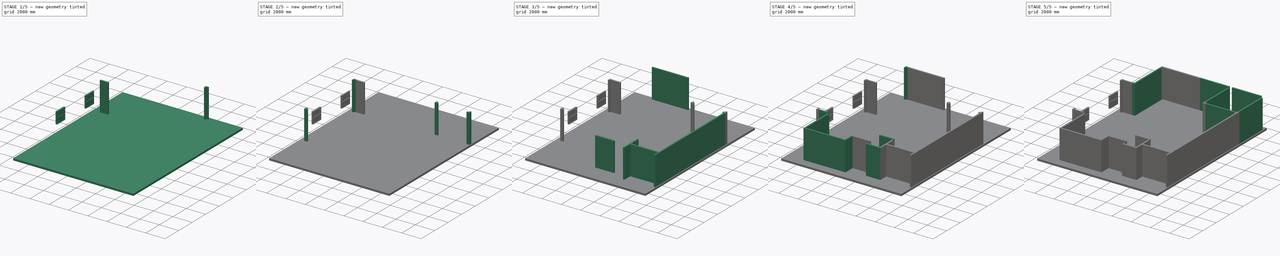
[diagram: build sequence overview — one tinted view per stage of 5, left to right]
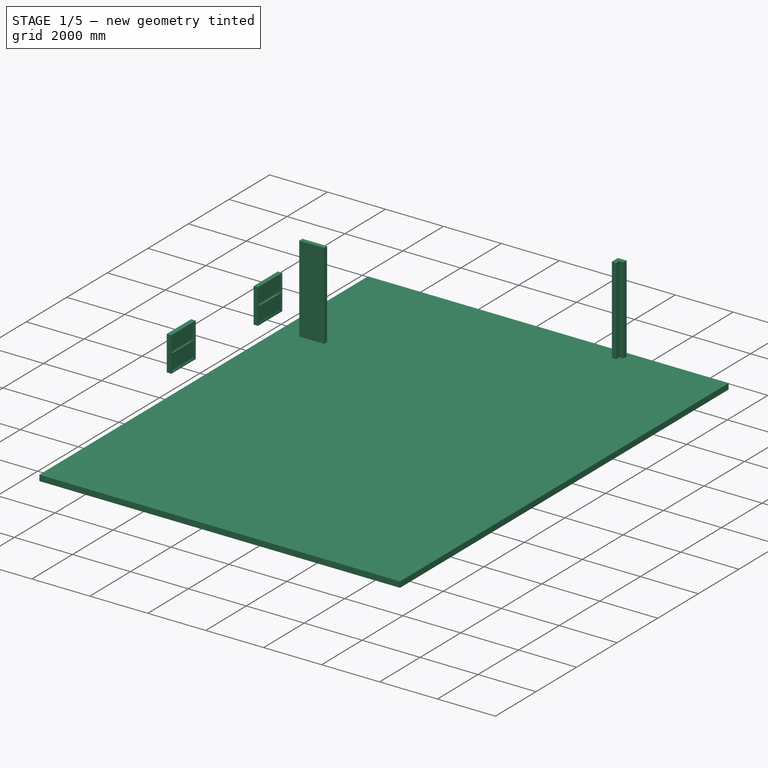
[diagram: stage 1 of 5 — iso view after this stage's code; geometry added in this stage tinted green]
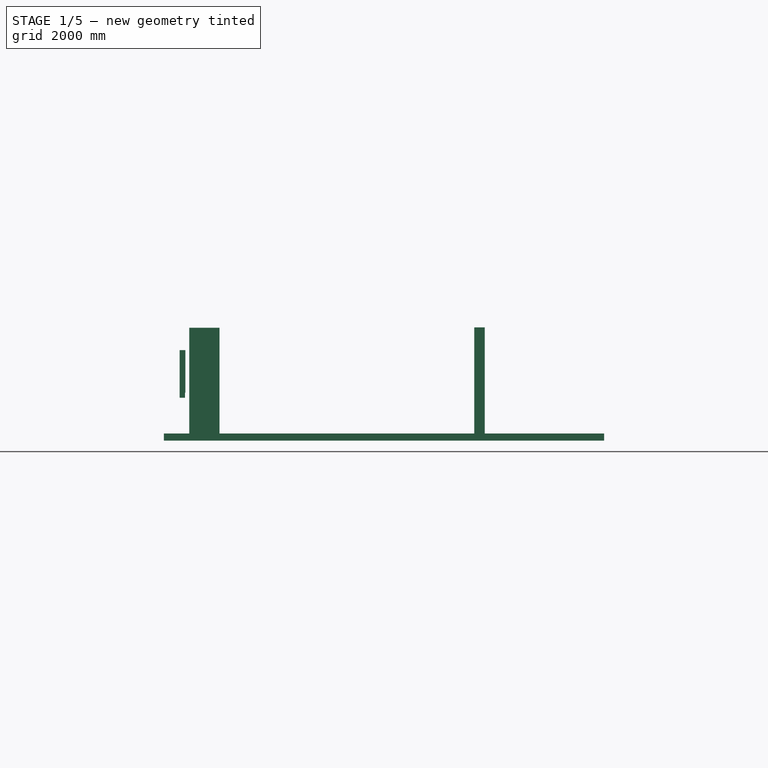
[diagram: stage 1 of 5 — front view after this stage's code; geometry added in this stage tinted green]
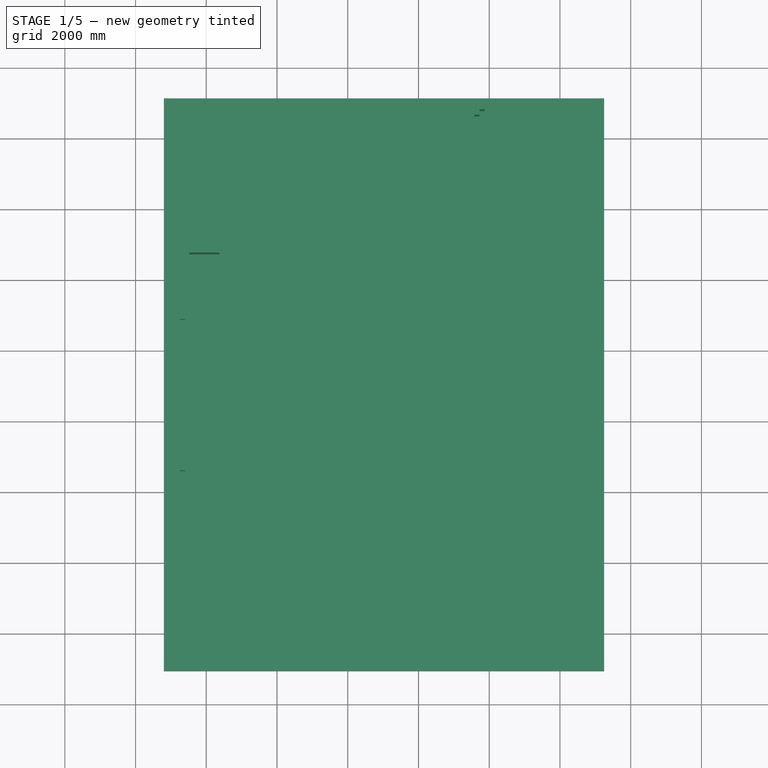
[diagram: stage 1 of 5 — top view after this stage's code; geometry added in this stage tinted green]
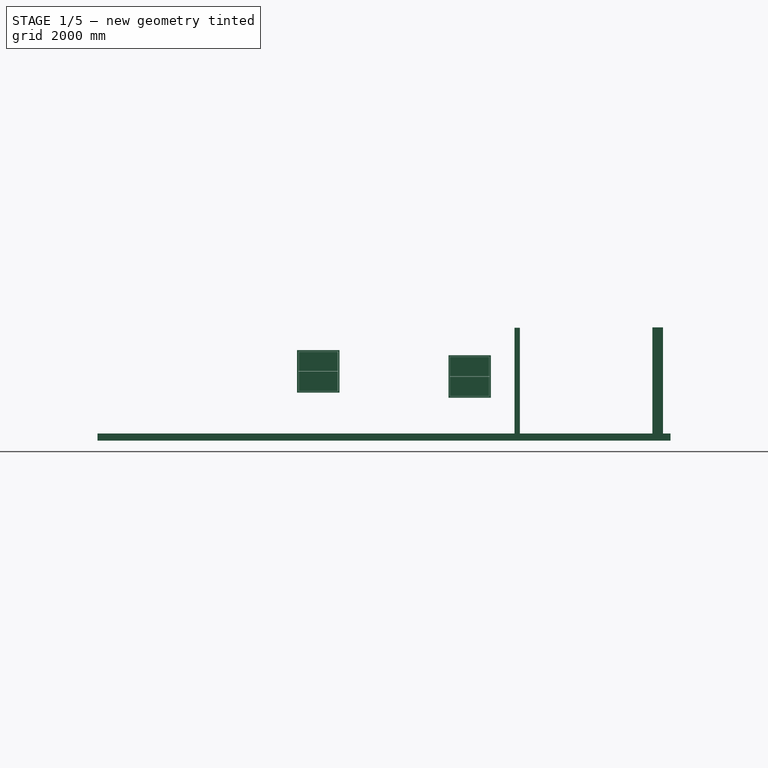
[diagram: stage 1 of 5 — right view after this stage's code; geometry added in this stage tinted green]
FCSTD DOCUMENT  (FreeCAD 0.18R16131 (Git))
Label: Model-AR2
License: All rights reserved
LicenseURL: http://en.wikipedia.org/wiki/All_rights_reserved
objects: Sketcher::SketchObject×28, Part::FeaturePython×26, Part::Mirroring×9, App::DocumentObjectGroup×6, Part::Part2DObjectPython×1, Part::Line×1, Part::Plane×1, Part::Feature×1
note: 67 computed .brp shape members not serialized (recipe doc carries the construction recipe); baked Part::Feature solids carry a one-line shape summary decoded from their .brp

FEATURE [Part::Part2DObjectPython] Wire001  # Draft 2D object (typed FeaturePython)
  ChamferSize = 0
  Closed = true
  End = (-6600,-4199.13,0)
  FilletRadius = 0
  Length = 1200.88
  MakeFace = true
  Points = (6) [(-6600,-4500,0),(-6300,-4500,0),(-6300,-4350,0),(-6450,-4350,0),(-6450,-4200,0),(-6600,-4199.13,0)]
  Start = (-6600,-4500,0)
  Subdivisions = 0
FEATURE [Part::Mirroring] mirror  label="Mirror of Wire"
  Base = (-6450,-2371.2,0)
  Normal = (0,-1,0)
  Placement = pos=(75,28.8001,0) rot=(0,0,1;0rad)
FEATURE [Part::FeaturePython] Wall001  label="L-300x300"  # Arch/BIM object (typed FeaturePython)
  Align = 2
  Base = -> mirror
  BlockHeight = 0
  BlockLength = 0
  CountBroken = 0
  CountEntire = 0
  Face = 0
  Height = 3000
  HorizontalArea = 67565.4
  IfcRole = 25
  Joint = 0
  Length = 0
  MakeBlocks = false
  MoveWithHost = false
  Normal = (0,0,0)
  OffsetFirst = 0
  OffsetSecond = 0
  PerimeterLength = 1200.88
  Placement = pos=(8100,7142.4,0) rot=(0,0,1;0rad)
  VerticalArea = 3.60263e+06
  Width = 150
FEATURE [Sketcher::SketchObject] WallTrace017
  Placement = pos=(-6525,-2371.2,0) rot=(0.707107,0.707107,0;3.14159rad)
  sketch-geometry (1):
    g0: LineSegment StartX=9300.87 StartY=1350 StartZ=0 EndX=9300 EndY=4950 EndZ=0
FEATURE [Sketcher::SketchObject] WallTrace019
  Placement = pos=(-6525,-2371.2,0) rot=(0.707107,0.707107,0;3.14159rad)
  sketch-geometry (1):
    g0: LineSegment StartX=4950 StartY=-150 StartZ=0 EndX=-1800 EndY=-150 EndZ=0
FEATURE [Part::FeaturePython] Wall031  label="CMU-W15"  # Arch/BIM object (typed FeaturePython)
  Align = 1
  Base = -> WallTrace019
  BlockHeight = 0
  BlockLength = 0
  CountBroken = 0
  CountEntire = 0
  Face = 0
  Height = 3000
  HorizontalArea = 1.3725e+06
  IfcRole = 156
  Joint = 0
  Length = 6750
  MakeBlocks = false
  MoveWithHost = false
  Normal = (0,0,-1)
  OffsetFirst = 0
  OffsetSecond = 0
  PerimeterLength = 13800
  Placement = pos=(42.8481,-0.000488281,2980.41) rot=(0,0,1;0rad)
  VerticalArea = 3.636e+07
  Width = 150
FEATURE [Part::Plane] Plane
  AttacherType = Attacher::AttachEngine3D
  Length = 12450
  Placement = pos=(-7200,7138.96,0) rot=(1,0,0;3.14159rad)
  Width = 16200
FEATURE [Part::FeaturePython] Structure  label="Floor Slab"  # Arch/BIM object (typed FeaturePython)
  Base = -> Plane
  FaceMaker = 2
  Height = 200
  HorizontalArea = 201690000
  IfcRole = 116
  Length = 0
  MoveWithHost = false
  Nodes = (4) [(-7200,9061.04,0),(-7200,-7138.96,0),(5250,9061.04,0),(5250,-7138.96,0)]
  NodesOffset = 0
  Normal = (0,0,0)
  PerimeterLength = 57300
  VerticalArea = 11460000
  Width = 150
FEATURE [App::DocumentObjectGroup] Group002  label="L-Stiffeners"
  Group = -> [Wall001,mirror003,mirror012,mirror011,mirror010,mirror007,mirror025,Clone,Wall046]
FEATURE [Part::Mirroring] mirror001  label="Mirror of L-Stiffeners"
  Base = (-4800.18,-391.768,0)
  Normal = (-1,0,0)
  Placement = pos=(75,28.8001,0) rot=(0,0,1;0rad)
  Source = -> Group002
FEATURE [App::DocumentObjectGroup] Group001  label="Structural Framing"
  Group = -> [Group002,mirror001]
FEATURE [Sketcher::SketchObject] WallTrace034
  Placement = pos=(5100,-2311.04,0) rot=(1,0,0;3.14159rad)
  sketch-geometry (1):
    g0: LineSegment StartX=-10725 StartY=-5188.96 StartZ=0 EndX=-11582.2 EndY=-5190.71 EndZ=0
FEATURE [Part::FeaturePython] Wall048  label="CMU-WN16"  # Arch/BIM object (typed FeaturePython)
  Align = 0
  Base = -> WallTrace034
  BlockHeight = 0
  BlockLength = 0
  CountBroken = 0
  CountEntire = 0
  Face = 0
  Height = 3000
  HorizontalArea = 128573
  IfcRole = 156
  Joint = 0
  Length = 857.154
  MakeBlocks = false
  MoveWithHost = false
  Normal = (0,0,-1)
  OffsetFirst = 0
  OffsetSecond = 0
  PerimeterLength = 2014.31
  Placement = pos=(0,0,2991.16) rot=(0,0,1;0rad)
  VerticalArea = 6.04292e+06
  Width = 150
FEATURE [App::DocumentObjectGroup] Group  label="GroundFloor External CMU"
  Group = -> [Wall030,Wall029,Wall027,WallTrace011,Wall026,Wall025,Wall018,Wire001,WallTrace017,Wall031,Wall,Wall032,Wall033,Wall034,WallTrace024,WallTrace025,Wall037,Wall039,Wall040,Wall042,WallTrace012,Wall041,Wall043,Wall044,Wall045,WallTrace033,Wall048,WallTrace034,WallTrace004,WallTrace003]
FEATURE [App::DocumentObjectGroup] Construction
FEATURE [App::DocumentObjectGroup] Group003  label="Structural Slabs"
  Group = -> [Structure]
FEATURE [Sketcher::SketchObject] Sketch
  Placement = pos=(-6782.15,2061.13,1012.24) rot=(0.57735,-0.57735,-0.57735;2.0944rad)
  sketch-geometry (24):
    g0: LineSegment StartX=0 StartY=0 StartZ=0 EndX=1200 EndY=0 EndZ=0
    g1: LineSegment StartX=1200 StartY=0 StartZ=0 EndX=1200 EndY=1200 EndZ=0
    g2: LineSegment StartX=1200 StartY=1200 StartZ=0 EndX=0 EndY=1200 EndZ=0
    g3: LineSegment StartX=0 StartY=1200 StartZ=0 EndX=0 EndY=0 EndZ=0
    g4: LineSegment StartX=40 StartY=40 StartZ=0 EndX=1160 EndY=40 EndZ=0
    g5: LineSegment StartX=1160 StartY=40 StartZ=0 EndX=1160 EndY=1160 EndZ=0
    g6: LineSegment StartX=1160 StartY=1160 StartZ=0 EndX=40 EndY=1160 EndZ=0
    g7: LineSegment StartX=40 StartY=1160 StartZ=0 EndX=40 EndY=40 EndZ=0
    g8: LineSegment StartX=44 StartY=44 StartZ=0 EndX=1156 EndY=44 EndZ=0
    g9: LineSegment StartX=1156 StartY=44 StartZ=0 EndX=1156 EndY=598 EndZ=0
    g10: LineSegment StartX=1156 StartY=598 StartZ=0 EndX=44 EndY=598 EndZ=0
    g11: LineSegment StartX=44 StartY=598 StartZ=0 EndX=44 EndY=44 EndZ=0
    g12: LineSegment StartX=74 StartY=74 StartZ=0 EndX=1126 EndY=74 EndZ=0
    g13: LineSegment StartX=1126 StartY=74 StartZ=0 EndX=1126 EndY=568 EndZ=0
    g14: LineSegment StartX=1126 StartY=568 StartZ=0 EndX=74 EndY=568 EndZ=0
    g15: LineSegment StartX=74 StartY=568 StartZ=0 EndX=74 EndY=74 EndZ=0
    g16: LineSegment StartX=44 StartY=602 StartZ=0 EndX=1156 EndY=602 EndZ=0
    g17: LineSegment StartX=1156 StartY=602 StartZ=0 EndX=1156 EndY=1156 EndZ=0
    g18: LineSegment StartX=1156 StartY=1156 StartZ=0 EndX=44 EndY=1156 EndZ=0
    g19: LineSegment StartX=44 StartY=1156 StartZ=0 EndX=44 EndY=602 EndZ=0
    g20: LineSegment StartX=74 StartY=632 StartZ=0 EndX=1126 EndY=632 EndZ=0
    g21: LineSegment StartX=1126 StartY=632 StartZ=0 EndX=1126 EndY=1126 EndZ=0
    g22: LineSegment StartX=1126 StartY=1126 StartZ=0 EndX=74 EndY=1126 EndZ=0
    g23: LineSegment StartX=74 StartY=1126 StartZ=0 EndX=74 EndY=632 EndZ=0
  constraints (71):
    c: Coincident(g0,g1)
    c: Coincident(g1,g2)
    c: Coincident(g2,g3)
    c: Coincident(g3,g0)
    c: Horizontal(g0)
    c: Horizontal(g2)
    c: Vertical(g1)
    c: Vertical(g3)
    c: Coincident(g4,g5)
    c: Coincident(g5,g6)
    c: Coincident(g6,g7)
    c: Coincident(g7,g4)
    c: Horizontal(g4)
    c: Horizontal(g6)
    c: Vertical(g5)
    c: Vertical(g7)
    c: DistanceY(g1) = 1200  'Height'
    c: DistanceX(g0) = 1200  'Width'
    c: DistanceY(g6,g2) = 40  'Frame1'
    c: DistanceX(g2,g6) = 40  'Frame2'
    c: DistanceX(g4,g0) = 40  'Frame3'
    c: DistanceY(g0,g4) = 40  'Frame4'
    c: Coincident(g0,g-1)
    c: Coincident(g8,g9)
    c: Coincident(g9,g10)
    c: Coincident(g10,g11)
    c: Coincident(g11,g8)
    c: Horizontal(g8)
    c: Horizontal(g10)
    c: Vertical(g9)
    c: Vertical(g11)
    c: Coincident(g12,g13)
    c: Coincident(g13,g14)
    c: Coincident(g14,g15)
    c: Coincident(g15,g12)
    c: Horizontal(g12)
    c: Horizontal(g14)
    c: Vertical(g13)
    c: Vertical(g15)
    c: Coincident(g16,g17)
    c: Coincident(g17,g18)
    c: Coincident(g18,g19)
    c: Coincident(g19,g16)
    c: Horizontal(g16)
    c: Horizontal(g18)
    c: Vertical(g17)
    c: Vertical(g19)
    c: Coincident(g20,g21)
    c: Coincident(g21,g22)
    c: Coincident(g22,g23)
    c: Coincident(g23,g20)
    c: Horizontal(g20)
    c: Horizontal(g22)
    c: Vertical(g21)
    c: Vertical(g23)
    c: DistanceY(g8,g12) = 30
    c: DistanceX(g8,g12) = 30
    c: DistanceX(g21,g17) = 30
    c: DistanceY(g21,g17) = 30
    c: DistanceY(g16,g20) = 30
    c: DistanceY(g10,g14) = -30
    c: Equal(g23,g15)
    c: DistanceX(g12,g20) = 0
    c: DistanceX(g13,g20) = 0
    c: DistanceX(g4,g8) = 4
    c: DistanceY(g4,g8) = 4
    c: DistanceX(g6,g18) = -4
    c: DistanceY(g6,g18) = -4
    c: DistanceY(g10,g16) = 4
    c: PointOnObject(g9,g17)
    c: PointOnObject(g16,g11)
FEATURE [Part::FeaturePython] Window  # Arch/BIM object (typed FeaturePython)
  Area = 1440000
  Base = -> Sketch
  Frame = 40
  Height = 1200
  HoleDepth = 0
  HoleWire = 0
  HorizontalArea = 0
  Hosts = -> [Wall031]
  IfcRole = 160
  LouvreSpacing = 0
  LouvreWidth = 0
  MoveWithHost = true
  Normal = (1,0,0)
  Offset = 30
  Opening = 0
  PerimeterLength = 0
  Preset = 4
  SymbolElevation = false
  SymbolPlan = false
  VerticalArea = 0
  Width = 1200
  WindowParts = OuterFrame | Frame | Wire0,Wire1 | 110.0+V | 0.00+V | LowerFrame | Frame | Wire2,Wire3 | 40.0 | 110.0+V | LowerGlass | Glass panel | Wire3 | 4.0 | 130.0+V | UpperFrame | Frame | Wire4,Wire5 | 40.0 | 70.0+V | UpperGlass | Glass panel | Wire5 | 4.0 | 90.0+V
FEATURE [Sketcher::SketchObject] Sketch001
  Placement = pos=(-6782.15,-2219.61,1157.13) rot=(0.57735,-0.57735,-0.57735;2.0944rad)
  sketch-geometry (24):
    g0: LineSegment StartX=0 StartY=0 StartZ=0 EndX=1200 EndY=0 EndZ=0
    g1: LineSegment StartX=1200 StartY=0 StartZ=0 EndX=1200 EndY=1200 EndZ=0
    g2: LineSegment StartX=1200 StartY=1200 StartZ=0 EndX=0 EndY=1200 EndZ=0
    g3: LineSegment StartX=0 StartY=1200 StartZ=0 EndX=0 EndY=0 EndZ=0
    g4: LineSegment StartX=40 StartY=40 StartZ=0 EndX=1160 EndY=40 EndZ=0
    g5: LineSegment StartX=1160 StartY=40 StartZ=0 EndX=1160 EndY=1160 EndZ=0
    g6: LineSegment StartX=1160 StartY=1160 StartZ=0 EndX=40 EndY=1160 EndZ=0
    g7: LineSegment StartX=40 StartY=1160 StartZ=0 EndX=40 EndY=40 EndZ=0
    g8: LineSegment StartX=44 StartY=44 StartZ=0 EndX=1156 EndY=44 EndZ=0
    g9: LineSegment StartX=1156 StartY=44 StartZ=0 EndX=1156 EndY=598 EndZ=0
    g10: LineSegment StartX=1156 StartY=598 StartZ=0 EndX=44 EndY=598 EndZ=0
    g11: LineSegment StartX=44 StartY=598 StartZ=0 EndX=44 EndY=44 EndZ=0
    g12: LineSegment StartX=74 StartY=74 StartZ=0 EndX=1126 EndY=74 EndZ=0
    g13: LineSegment StartX=1126 StartY=74 StartZ=0 EndX=1126 EndY=568 EndZ=0
    g14: LineSegment StartX=1126 StartY=568 StartZ=0 EndX=74 EndY=568 EndZ=0
    g15: LineSegment StartX=74 StartY=568 StartZ=0 EndX=74 EndY=74 EndZ=0
    g16: LineSegment StartX=44 StartY=602 StartZ=0 EndX=1156 EndY=602 EndZ=0
    g17: LineSegment StartX=1156 StartY=602 StartZ=0 EndX=1156 EndY=1156 EndZ=0
    g18: LineSegment StartX=1156 StartY=1156 StartZ=0 EndX=44 EndY=1156 EndZ=0
    g19: LineSegment StartX=44 StartY=1156 StartZ=0 EndX=44 EndY=602 EndZ=0
    g20: LineSegment StartX=74 StartY=632 StartZ=0 EndX=1126 EndY=632 EndZ=0
    g21: LineSegment StartX=1126 StartY=632 StartZ=0 EndX=1126 EndY=1126 EndZ=0
    g22: LineSegment StartX=1126 StartY=1126 StartZ=0 EndX=74 EndY=1126 EndZ=0
    g23: LineSegment StartX=74 StartY=1126 StartZ=0 EndX=74 EndY=632 EndZ=0
  constraints (71):
    c: Coincident(g0,g1)
    c: Coincident(g1,g2)
    c: Coincident(g2,g3)
    c: Coincident(g3,g0)
    c: Horizontal(g0)
    c: Horizontal(g2)
    c: Vertical(g1)
    c: Vertical(g3)
    c: Coincident(g4,g5)
    c: Coincident(g5,g6)
    c: Coincident(g6,g7)
    c: Coincident(g7,g4)
    c: Horizontal(g4)
    c: Horizontal(g6)
    c: Vertical(g5)
    c: Vertical(g7)
    c: DistanceY(g1) = 1200  'Height'
    c: DistanceX(g0) = 1200  'Width'
    c: DistanceY(g6,g2) = 40  'Frame1'
    c: DistanceX(g2,g6) = 40  'Frame2'
    c: DistanceX(g4,g0) = 40  'Frame3'
    c: DistanceY(g0,g4) = 40  'Frame4'
    c: Coincident(g0,g-1)
    c: Coincident(g8,g9)
    c: Coincident(g9,g10)
    c: Coincident(g10,g11)
    c: Coincident(g11,g8)
    c: Horizontal(g8)
    c: Horizontal(g10)
    c: Vertical(g9)
    c: Vertical(g11)
    c: Coincident(g12,g13)
    c: Coincident(g13,g14)
    c: Coincident(g14,g15)
    c: Coincident(g15,g12)
    c: Horizontal(g12)
    c: Horizontal(g14)
    c: Vertical(g13)
    c: Vertical(g15)
    c: Coincident(g16,g17)
    c: Coincident(g17,g18)
    c: Coincident(g18,g19)
    c: Coincident(g19,g16)
    c: Horizontal(g16)
    c: Horizontal(g18)
    c: Vertical(g17)
    c: Vertical(g19)
    c: Coincident(g20,g21)
    c: Coincident(g21,g22)
    c: Coincident(g22,g23)
    c: Coincident(g23,g20)
    c: Horizontal(g20)
    c: Horizontal(g22)
    c: Vertical(g21)
    c: Vertical(g23)
    c: DistanceY(g8,g12) = 30
    c: DistanceX(g8,g12) = 30
    c: DistanceX(g21,g17) = 30
    c: DistanceY(g21,g17) = 30
    c: DistanceY(g16,g20) = 30
    c: DistanceY(g10,g14) = -30
    c: Equal(g23,g15)
    c: DistanceX(g12,g20) = 0
    c: DistanceX(g13,g20) = 0
    c: DistanceX(g4,g8) = 4
    c: DistanceY(g4,g8) = 4
    c: DistanceX(g6,g18) = -4
    c: DistanceY(g6,g18) = -4
    c: DistanceY(g10,g16) = 4
    c: PointOnObject(g9,g17)
    c: PointOnObject(g16,g11)
FEATURE [Part::FeaturePython] Window002  label="Window"  # Arch/BIM object (typed FeaturePython)
  Area = 1440000
  Base = -> Sketch001
  Frame = 40
  Height = 1200
  HoleDepth = 0
  HoleWire = 0
  HorizontalArea = 0
  Hosts = -> [Wall031]
  IfcRole = 160
  LouvreSpacing = 0
  LouvreWidth = 0
  MoveWithHost = true
  Normal = (1,0,0)
  Offset = 30
  Opening = 0
  PerimeterLength = 0
  Preset = 4
  SymbolElevation = false
  SymbolPlan = false
  VerticalArea = 0
  Width = 1200
  WindowParts = OuterFrame | Frame | Wire0,Wire1 | 120.0+V | 0.00+V | LowerFrame | Frame | Wire2,Wire3 | 30.0 | 100.0+V | LowerGlass | Glass panel | Wire3 | 3.0 | 115.0+V | UpperFrame | Frame | Wire4,Wire5 | 30.0 | 70.0+V | UpperGlass | Glass panel | Wire5 | 3.0 | 85.0+V
FEATURE [App::DocumentObjectGroup] Group004  label="Windows"
  Group = -> [Window002,Window]
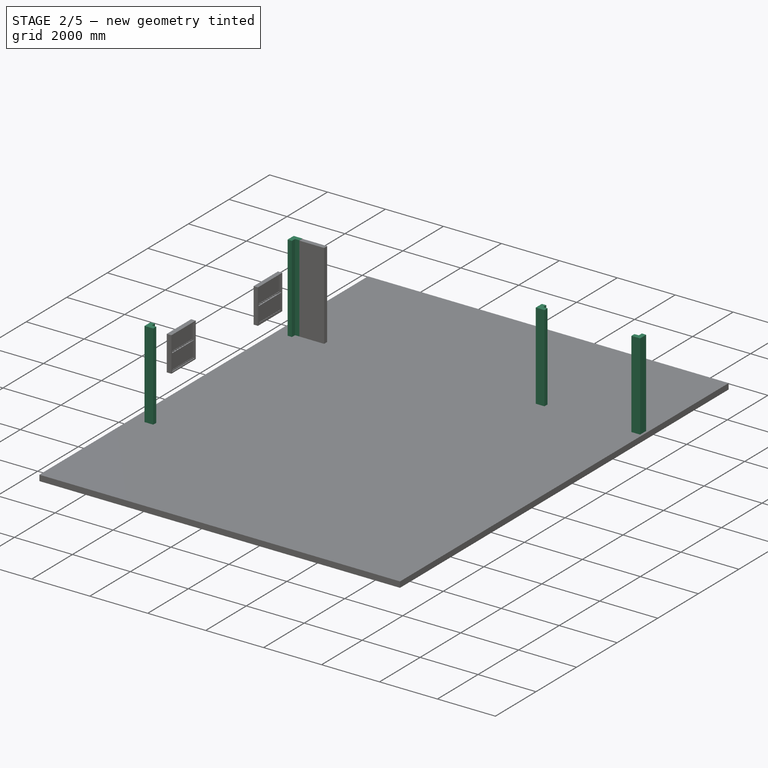
[diagram: stage 2 of 5 — iso view after this stage's code; geometry added in this stage tinted green]
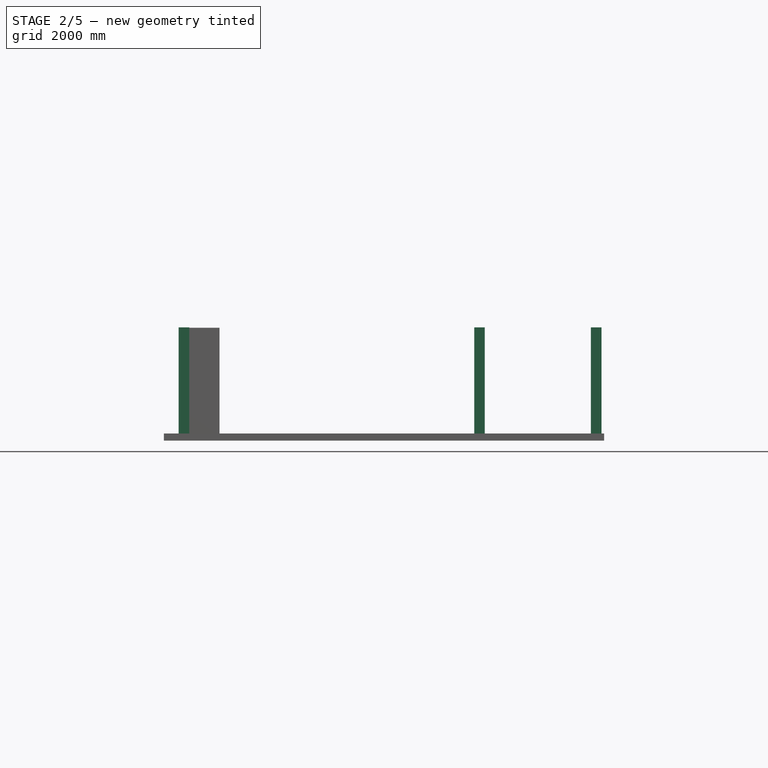
[diagram: stage 2 of 5 — front view after this stage's code; geometry added in this stage tinted green]
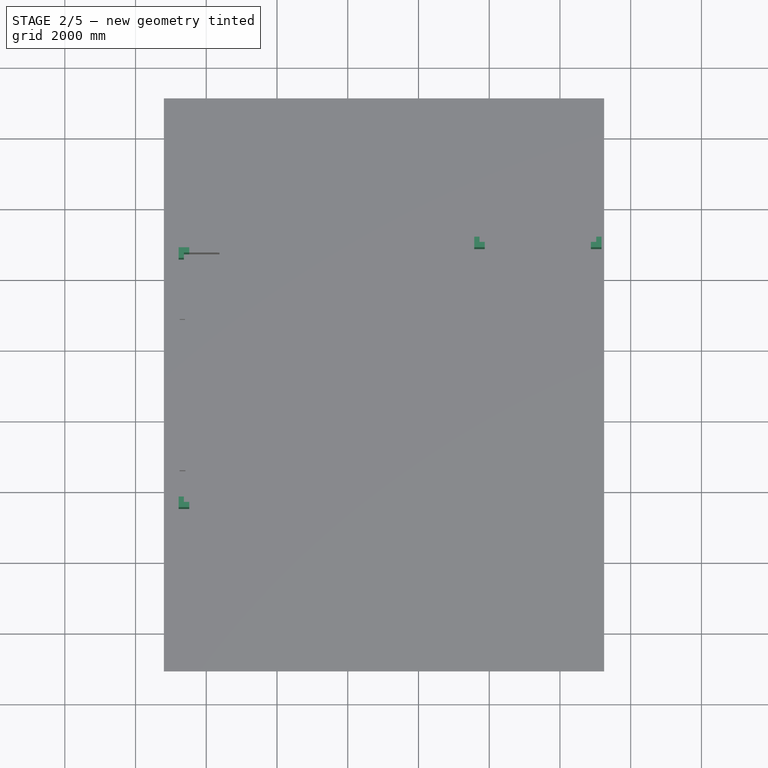
[diagram: stage 2 of 5 — top view after this stage's code; geometry added in this stage tinted green]
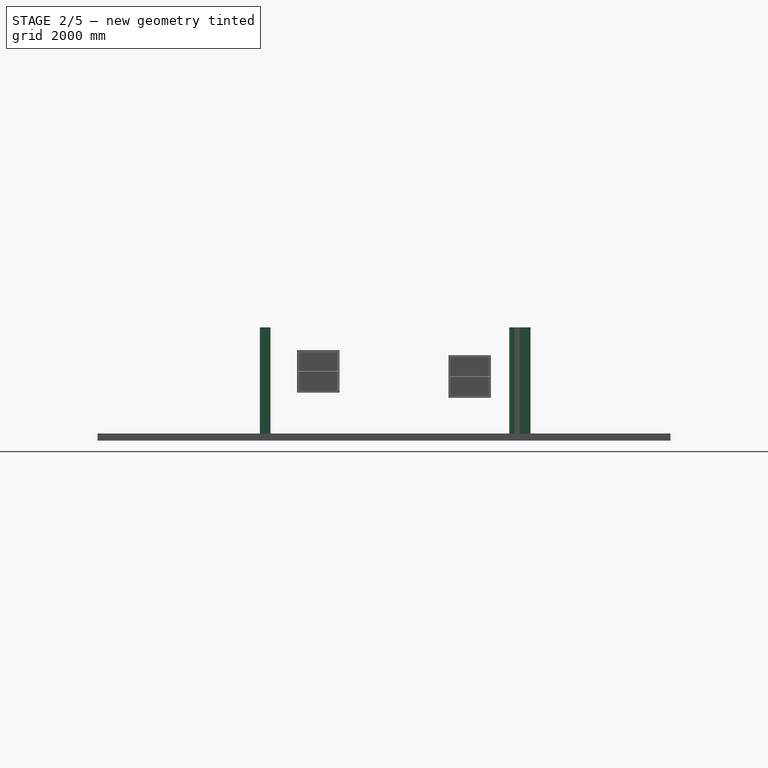
[diagram: stage 2 of 5 — right view after this stage's code; geometry added in this stage tinted green]
FEATURE [Sketcher::SketchObject] WallTrace002
  sketch-geometry (1):
    g0: LineSegment StartX=-10800 StartY=-5400 StartZ=0 EndX=-7800 EndY=-5400 EndZ=0
FEATURE [Part::Mirroring] mirror002  label="Mirror of L-300x300"
  Base = (-4800.18,-391.768,0)
  Normal = (-1,0,0)
  Placement = pos=(16350.4,-9.76563e-05,0) rot=(0,0,1;0rad)
  Source = -> Wall001
FEATURE [Sketcher::SketchObject] WallTrace003
  sketch-geometry (1):
    g0: LineSegment StartX=-3000.36 StartY=-3000.48 StartZ=0 EndX=600 EndY=-3000 EndZ=0
FEATURE [Sketcher::SketchObject] WallTrace004
  sketch-geometry (1):
    g0: LineSegment StartX=-3000.36 StartY=-3001.48 StartZ=0 EndX=1200 EndY=-3000 EndZ=0
FEATURE [Part::FeaturePython] Clone  label="Cloned Mirror of L-300x300"  # Draft clone (typed FeaturePython)
  AttacherType = Attacher::AttachEngine3D
  Fuse = false
  Objects = -> [mirror002]
  Placement = pos=(5852.46,-11250,0) rot=(0,0,1;0rad)
  Scale = (1,1,1)
FEATURE [Part::Mirroring] mirror009  label="Mirror of Cloned Mirror of L-300x300"
  Base = (-6032.15,-4321.2,-19.592)
  Normal = (1,0,0)
  Placement = pos=(-40.7451,7200.87,0) rot=(0,0,1;0rad)
  Source = -> Clone
FEATURE [Part::Mirroring] mirror010  label="Mirror of Mirror of Cloned Mirror of L-300x300"
  Base = (-6441.41,-4396.2,-19.592)
  Normal = (1.1e-15,-1,0)
  Placement = pos=(-1.728e-11,7200,0) rot=(0,0,1;0rad)
  Source = -> mirror009
FEATURE [Sketcher::SketchObject] WallTrace033
  Placement = pos=(-6707.15,-796.2,-19.592) rot=(0.707107,-0.707107,0;3.14159rad)
  sketch-geometry (1):
    g0: LineSegment StartX=-3674.13 StartY=-1082.15 StartZ=0 EndX=-3675.87 EndY=-225 EndZ=0
FEATURE [Part::Mirroring] mirror011  label="Mirror of L-300x300"
  Base = (1575,4903.8,-19.592)
  Normal = (0,-1,0)
  Source = -> Wall001
FEATURE [Part::Mirroring] mirror012  label="Mirror of Mirror of L-300x300"
  Base = (1575,4903.8,-19.592)
  Normal = (0,-1,0)
  Source = -> mirror002
FEATURE [Part::Feature] mirror025  label="Mirror of Cloned Mirror of L-300x300"
  Placement = pos=(-40.7451,7200,-19.592) rot=(0,0,1;0rad)
  shape: bbox 300 x 300.9 x 3000 mm, 8 faces (baked)
FEATURE [Part::FeaturePython] Wall046  label="Wall"  # Arch/BIM object (typed FeaturePython)
  Align = 2
  Base = -> mirror009
  BlockHeight = 0
  BlockLength = 0
  CountBroken = 0
  CountEntire = 0
  Face = 0
  Height = 3000
  HorizontalArea = 67565.4
  IfcRole = 156
  Joint = 0
  Length = 0
  MakeBlocks = false
  MoveWithHost = false
  Normal = (0,0,0)
  OffsetFirst = 0
  OffsetSecond = 0
  PerimeterLength = 1200.88
  VerticalArea = 3.60263e+06
  Width = 150
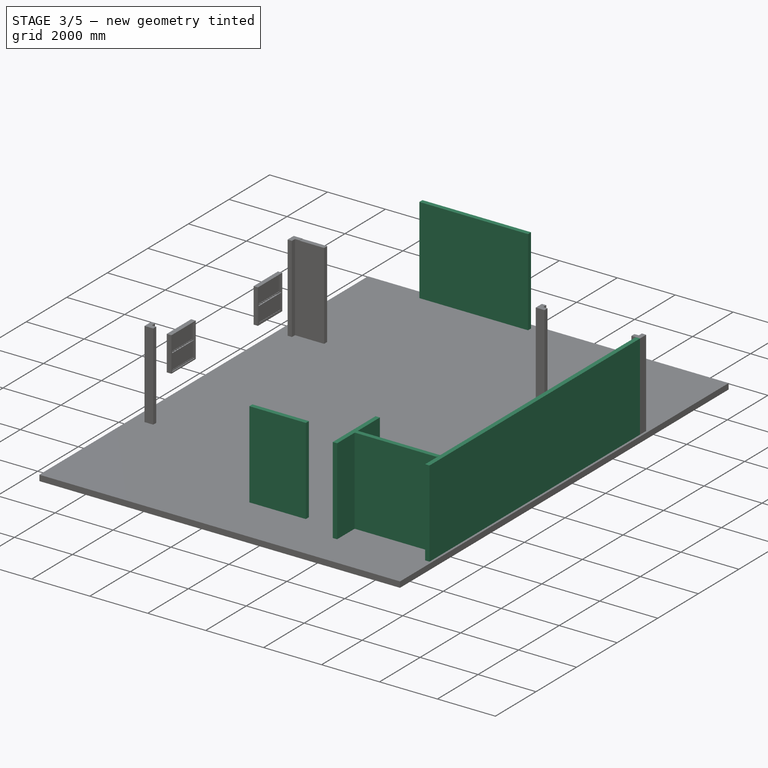
[diagram: stage 3 of 5 — iso view after this stage's code; geometry added in this stage tinted green]
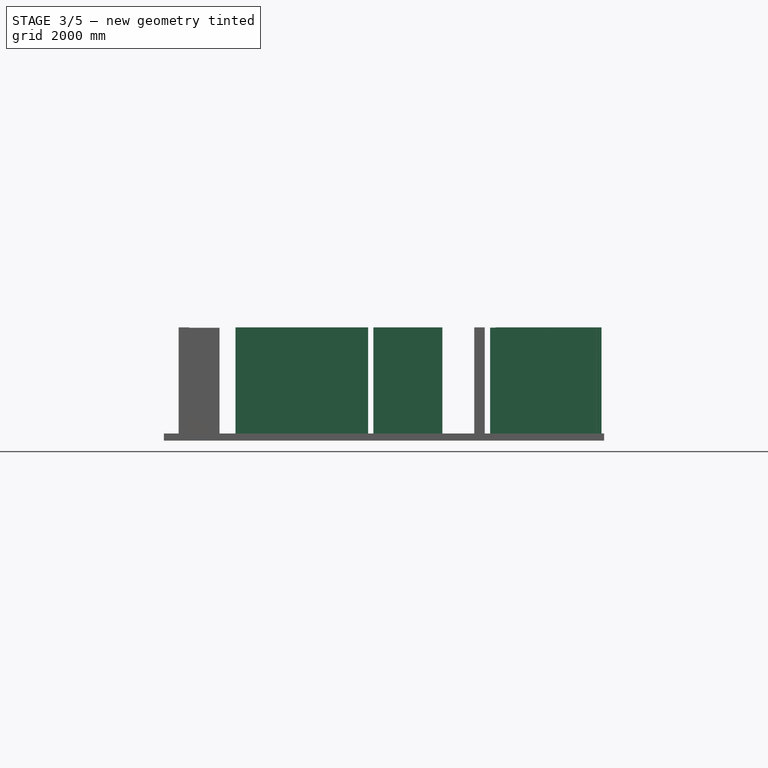
[diagram: stage 3 of 5 — front view after this stage's code; geometry added in this stage tinted green]
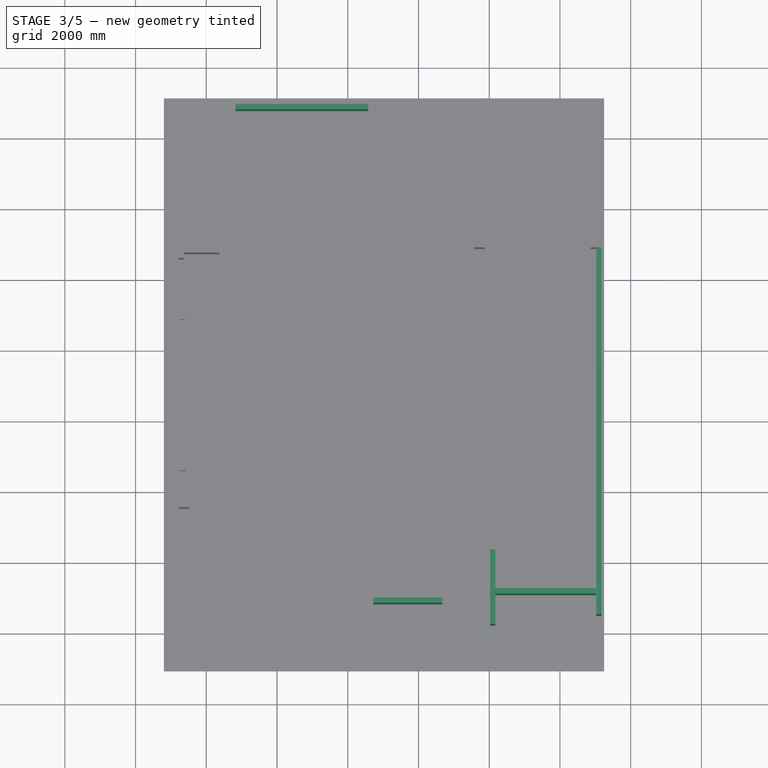
[diagram: stage 3 of 5 — top view after this stage's code; geometry added in this stage tinted green]
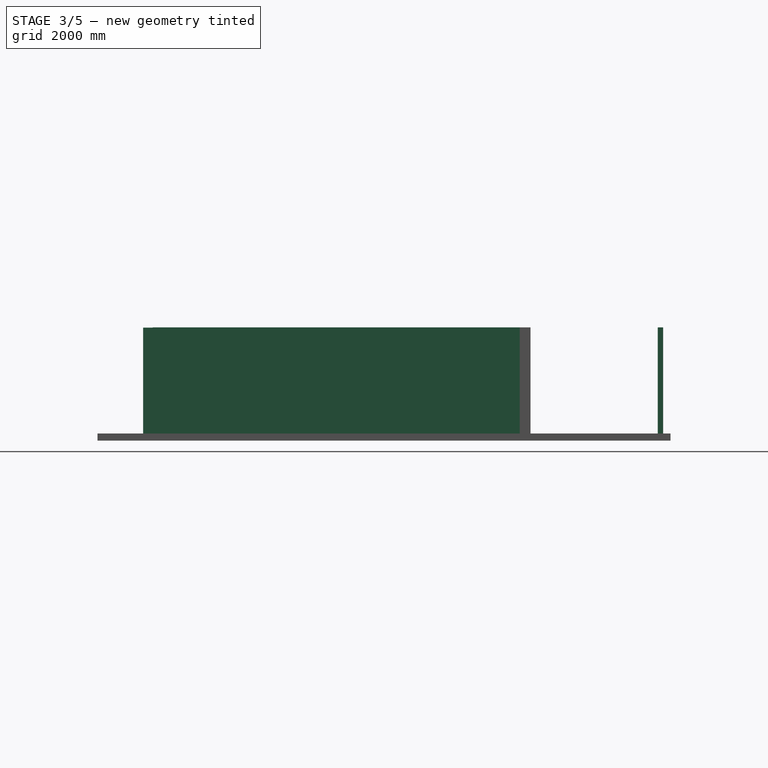
[diagram: stage 3 of 5 — right view after this stage's code; geometry added in this stage tinted green]
FEATURE [Sketcher::SketchObject] WallTrace029
  Placement = pos=(-6525,-2371.2,0) rot=(0.707107,0.707107,0;3.14159rad)
  sketch-geometry (1):
    g0: LineSegment StartX=-5400 StartY=7200 StartZ=0 EndX=-3291.61 EndY=7200 EndZ=0
FEATURE [Part::FeaturePython] Wall040  label="CMU-SW9"  # Arch/BIM object (typed FeaturePython)
  Align = 1
  Base = -> WallTrace029
  BlockHeight = 0
  BlockLength = 0
  CountBroken = 0
  CountEntire = 0
  Face = 0
  Height = 3000
  HorizontalArea = 316258
  IfcRole = 156
  Joint = 0
  Length = 2108.39
  MakeBlocks = false
  MoveWithHost = false
  Normal = (0,0,-1)
  OffsetFirst = 0
  OffsetSecond = 0
  PerimeterLength = 4516.77
  Placement = pos=(0,0,2994.16) rot=(0,0,1;0rad)
  VerticalArea = 1.35503e+07
  Width = 150
FEATURE [Sketcher::SketchObject] WallTrace030
  Placement = pos=(-6525,-2371.2,0) rot=(0.707107,0.707107,0;3.14159rad)
  sketch-geometry (1):
    g0: LineSegment StartX=-4650 StartY=5250 StartZ=0 EndX=-4650 EndY=7200 EndZ=0
FEATURE [Part::FeaturePython] Wall041  label="CMU-S10"  # Arch/BIM object (typed FeaturePython)
  Align = 1
  Base = -> WallTrace030
  BlockHeight = 0
  BlockLength = 0
  CountBroken = 0
  CountEntire = 0
  Face = 0
  Height = 3000
  HorizontalArea = 292500
  IfcRole = 156
  Joint = 0
  Length = 1950
  MakeBlocks = false
  MoveWithHost = false
  Normal = (0,0,-1)
  OffsetFirst = 0
  OffsetSecond = 0
  PerimeterLength = 4200
  Placement = pos=(0,0,3000) rot=(0,0,1;0rad)
  VerticalArea = 1.26e+07
  Width = 150
FEATURE [Sketcher::SketchObject] WallTrace031
  sketch-geometry (1):
    g0: LineSegment StartX=-5175 StartY=6929.67 StartZ=0 EndX=-1423.72 EndY=6928.8 EndZ=0
FEATURE [Part::FeaturePython] Wall042  label="CMU-N-1"  # Arch/BIM object (typed FeaturePython)
  Align = 0
  Base = -> WallTrace031
  BlockHeight = 0
  BlockLength = 0
  CountBroken = 0
  CountEntire = 0
  Face = 0
  Height = 3000
  HorizontalArea = 562692
  IfcRole = 156
  Joint = 0
  Length = 3751.28
  MakeBlocks = false
  MoveWithHost = false
  Normal = (0,0,1)
  OffsetFirst = 0
  OffsetSecond = 0
  PerimeterLength = 7802.57
  VerticalArea = 2.34077e+07
  Width = 150
FEATURE [Sketcher::SketchObject] WallTrace032
  sketch-geometry (1):
    g0: LineSegment StartX=2175 StartY=-6759.67 StartZ=0 EndX=5020.85 EndY=-6759.67 EndZ=0
FEATURE [Part::FeaturePython] Wall043  label="CMU-S6"  # Arch/BIM object (typed FeaturePython)
  Align = 0
  Base = -> WallTrace032
  BlockHeight = 0
  BlockLength = 0
  CountBroken = 0
  CountEntire = 0
  Face = 0
  Height = 3000
  HorizontalArea = 426878
  IfcRole = 156
  Joint = 0
  Length = 2845.85
  MakeBlocks = false
  MoveWithHost = false
  Normal = (0,0,1)
  OffsetFirst = 0
  OffsetSecond = 0
  PerimeterLength = 5991.7
  VerticalArea = 1.79751e+07
  Width = 150
FEATURE [Part::FeaturePython] Wall045  label="CMU-SE7"  # Arch/BIM object (typed FeaturePython)
  Align = 2
  BlockHeight = 0
  BlockLength = 0
  CloneOf = -> Wall040
  CountBroken = 0
  CountEntire = 0
  Face = 0
  Height = 3000
  HorizontalArea = 316258
  IfcRole = 156
  Joint = 0
  Length = 2108.39
  MakeBlocks = false
  MoveWithHost = false
  Normal = (0,0,0)
  OffsetFirst = 0
  OffsetSecond = 0
  PerimeterLength = 4516.77
  Placement = pos=(1350.35,0,2994.16) rot=(0,0,1;0rad)
  VerticalArea = 1.35503e+07
  Width = 150
FEATURE [Part::Line] Line004
  AttacherType = Attacher::AttachEngine3D
  X1 = 5175
  X2 = 5175
  Y1 = 2877.93
  Y2 = -7500
  Z1 = 0
  Z2 = 0
FEATURE [Part::FeaturePython] Wall044  label="CMU-E5"  # Arch/BIM object (typed FeaturePython)
  Align = 2
  Base = -> Line004
  BlockHeight = 0
  BlockLength = 0
  CountBroken = 0
  CountEntire = 0
  Face = 0
  Height = 3000
  HorizontalArea = 1.55669e+06
  IfcRole = 156
  Joint = 0
  Length = 10377.9
  MakeBlocks = false
  MoveWithHost = false
  Normal = (0,0,0)
  OffsetFirst = 0
  OffsetSecond = 0
  PerimeterLength = 21055.9
  Placement = pos=(-75,0,0) rot=(0,0,1;0rad)
  VerticalArea = 6.31676e+07
  Width = 150
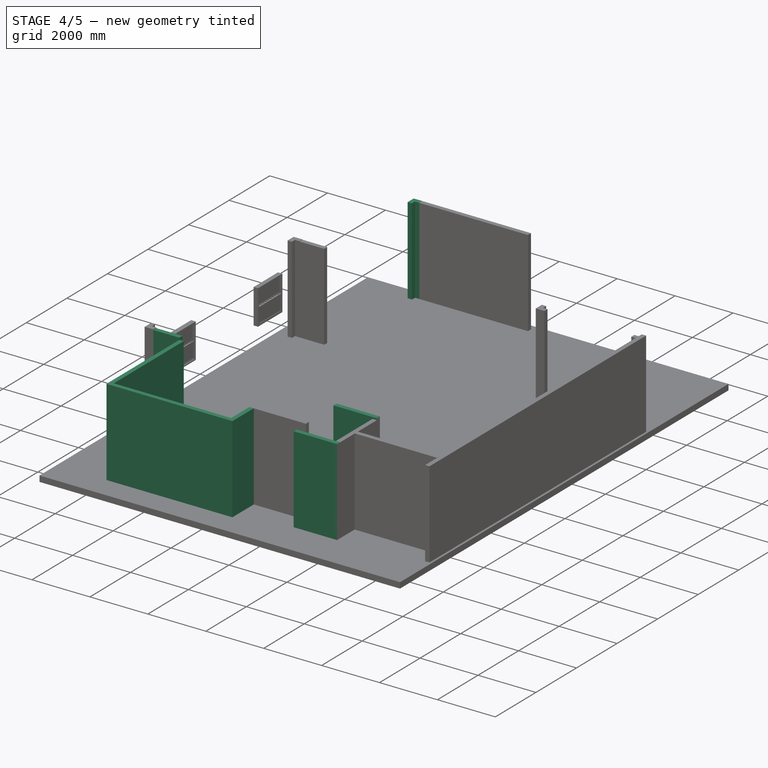
[diagram: stage 4 of 5 — iso view after this stage's code; geometry added in this stage tinted green]
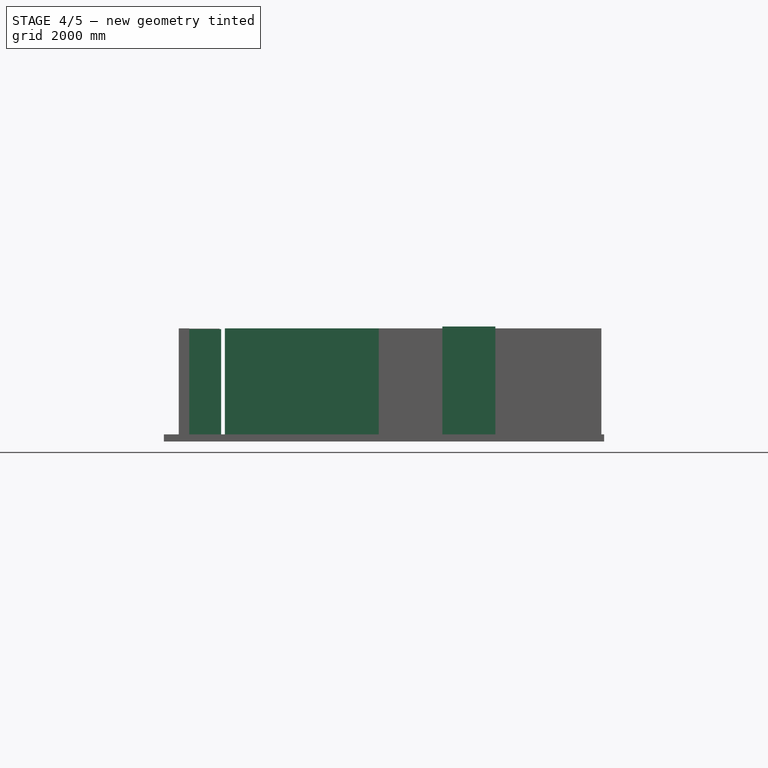
[diagram: stage 4 of 5 — front view after this stage's code; geometry added in this stage tinted green]
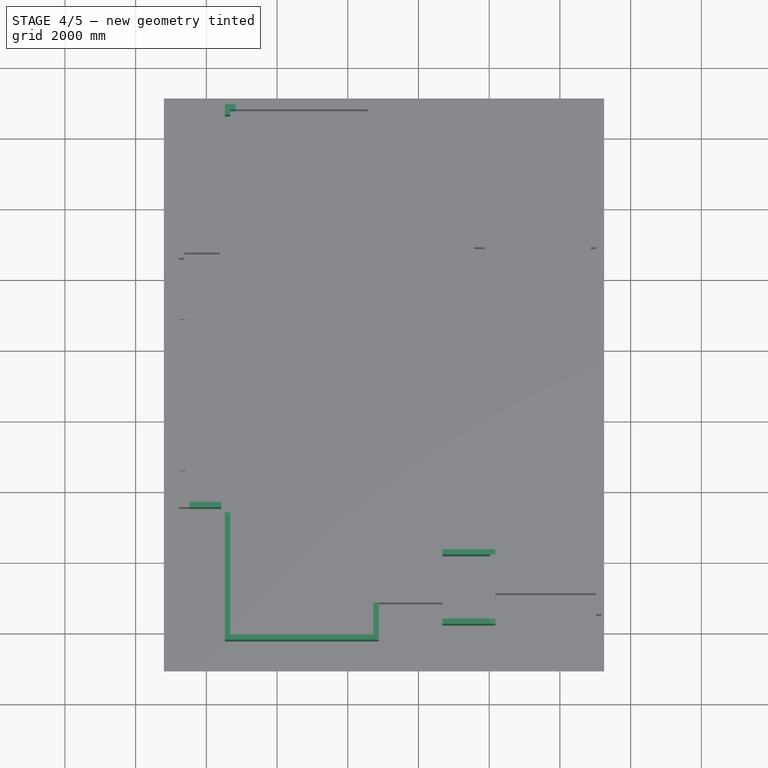
[diagram: stage 4 of 5 — top view after this stage's code; geometry added in this stage tinted green]
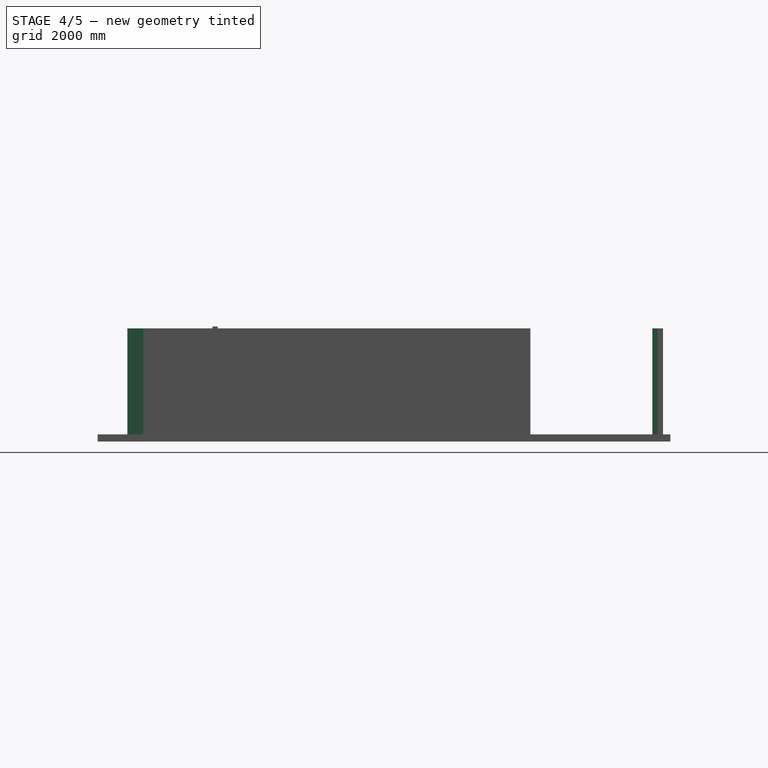
[diagram: stage 4 of 5 — right view after this stage's code; geometry added in this stage tinted green]
FEATURE [Part::Mirroring] mirror007  label="Mirror of Mirror of L-300x300"
  Base = (5175,6928.8,0)
  Normal = (1,0,0)
  Placement = pos=(-10650,0.872656,0) rot=(0,0,1;0rad)
  Source = -> mirror002
FEATURE [Sketcher::SketchObject] WallTrace020
  Placement = pos=(-6525,-2371.2,0) rot=(0.707107,0.707107,0;3.14159rad)
  sketch-geometry (1):
    g0: LineSegment StartX=-1950 StartY=0 StartZ=0 EndX=-1950 EndY=900 EndZ=0
FEATURE [Part::FeaturePython] Wall  label="CMU-WS14"  # Arch/BIM object (typed FeaturePython)
  Align = 1
  Base = -> WallTrace020
  BlockHeight = 0
  BlockLength = 0
  CountBroken = 0
  CountEntire = 0
  Face = 0
  Height = 3000
  HorizontalArea = 135000
  IfcRole = 156
  Joint = 0
  Length = 900
  MakeBlocks = false
  MoveWithHost = false
  Normal = (0,0,-1)
  OffsetFirst = 0
  OffsetSecond = 0
  PerimeterLength = 2100
  Placement = pos=(42.8481,-0.000488281,2980.41) rot=(0,0,1;0rad)
  VerticalArea = 6.3e+06
  Width = 150
FEATURE [Sketcher::SketchObject] WallTrace021
  Placement = pos=(-6525,-2371.2,0) rot=(0.707107,0.707107,0;3.14159rad)
  sketch-geometry (1):
    g0: LineSegment StartX=-2250 StartY=1200 StartZ=0 EndX=-5850 EndY=1200 EndZ=0
FEATURE [Part::FeaturePython] Wall032  label="CMU-W13"  # Arch/BIM object (typed FeaturePython)
  Align = 1
  Base = -> WallTrace021
  BlockHeight = 0
  BlockLength = 0
  CountBroken = 0
  CountEntire = 0
  Face = 0
  Height = 3000
  HorizontalArea = 540000
  IfcRole = 156
  Joint = 0
  Length = 3600
  MakeBlocks = false
  MoveWithHost = false
  Normal = (0,0,-1)
  OffsetFirst = 0
  OffsetSecond = 0
  PerimeterLength = 7500
  Placement = pos=(0,0,3000) rot=(0,0,1;0rad)
  VerticalArea = 2.25e+07
  Width = 150
FEATURE [Sketcher::SketchObject] WallTrace022
  Placement = pos=(-6525,-2371.2,0) rot=(0.707107,0.707107,0;3.14159rad)
  sketch-geometry (1):
    g0: LineSegment StartX=-5850 StartY=1050 StartZ=0 EndX=-5850 EndY=5400 EndZ=0
FEATURE [Part::FeaturePython] Wall033  label="CMU-S12"  # Arch/BIM object (typed FeaturePython)
  Align = 0
  Base = -> WallTrace022
  BlockHeight = 0
  BlockLength = 0
  CountBroken = 0
  CountEntire = 0
  Face = 0
  Height = 3000
  HorizontalArea = 652500
  IfcRole = 156
  Joint = 0
  Length = 4350
  MakeBlocks = false
  MoveWithHost = false
  Normal = (0,0,-1)
  OffsetFirst = 0
  OffsetSecond = 0
  PerimeterLength = 9000
  Placement = pos=(0,0,3000) rot=(0,0,1;0rad)
  VerticalArea = 2.7e+07
  Width = 150
FEATURE [Sketcher::SketchObject] WallTrace023
  Placement = pos=(-6525,-2371.2,0) rot=(0.707107,0.707107,0;3.14159rad)
  sketch-geometry (1):
    g0: LineSegment StartX=-5850 StartY=5400 StartZ=0 EndX=-4800 EndY=5400 EndZ=0
FEATURE [Part::FeaturePython] Wall034  label="CMU-SE11"  # Arch/BIM object (typed FeaturePython)
  Align = 0
  Base = -> WallTrace023
  BlockHeight = 0
  BlockLength = 0
  CountBroken = 0
  CountEntire = 0
  Face = 0
  Height = 3000
  HorizontalArea = 157500
  IfcRole = 156
  Joint = 0
  Length = 1050
  MakeBlocks = false
  MoveWithHost = false
  Normal = (0,0,-1)
  OffsetFirst = 0
  OffsetSecond = 0
  PerimeterLength = 2400
  Placement = pos=(0,0,3000) rot=(0,0,1;0rad)
  VerticalArea = 7200000
  Width = 150
FEATURE [Sketcher::SketchObject] WallTrace024
  Placement = pos=(-6525,-2371.2,0) rot=(0.707107,0.707107,0;3.14159rad)
  sketch-geometry (1):
    g0: LineSegment StartX=-4800 StartY=5250 StartZ=0 EndX=-4800 EndY=6150 EndZ=0
FEATURE [Sketcher::SketchObject] WallTrace025
  Placement = pos=(-6525,-2371.2,0) rot=(0.707107,0.707107,0;3.14159rad)
  sketch-geometry (1):
    g0: LineSegment StartX=-3600 StartY=7200 StartZ=0 EndX=-5400 EndY=7200 EndZ=0
FEATURE [Sketcher::SketchObject] WallTrace026
  Placement = pos=(-6525,-2371.2,0) rot=(0.707107,0.707107,0;3.14159rad)
  sketch-geometry (1):
    g0: LineSegment StartX=-5400 StartY=7200 StartZ=0 EndX=-5400 EndY=8700 EndZ=0
FEATURE [Part::FeaturePython] Wall037  label="CMU-S8"  # Arch/BIM object (typed FeaturePython)
  Align = 0
  Base = -> WallTrace026
  BlockHeight = 0
  BlockLength = 0
  CountBroken = 0
  CountEntire = 0
  Face = 0
  Height = 3000
  HorizontalArea = 225000
  IfcRole = 156
  Joint = 0
  Length = 1500
  MakeBlocks = false
  MoveWithHost = false
  Normal = (0,0,-1)
  OffsetFirst = 0
  OffsetSecond = 0
  PerimeterLength = 3300
  Placement = pos=(0,0,2994.16) rot=(0,0,1;0rad)
  VerticalArea = 9900000
  Width = 150
FEATURE [Sketcher::SketchObject] WallTrace027
  Placement = pos=(-6525,-2371.2,0) rot=(0.707107,0.707107,0;3.14159rad)
  sketch-geometry (1):
    g0: LineSegment StartX=-5400 StartY=8700 StartZ=0 EndX=-3291.61 EndY=8700 EndZ=0
FEATURE [Sketcher::SketchObject] WallTrace028
  Placement = pos=(-6525,-2371.2,0) rot=(0.707107,0.707107,0;3.14159rad)
  sketch-geometry (1):
    g0: LineSegment StartX=-3291.61 StartY=8700 StartZ=0 EndX=-3291.61 EndY=7200 EndZ=0
FEATURE [Part::FeaturePython] Wall039  label="CMU-I20"  # Arch/BIM object (typed FeaturePython)
  Align = 0
  Base = -> WallTrace028
  BlockHeight = 0
  BlockLength = 0
  CountBroken = 0
  CountEntire = 0
  Face = 0
  Height = 3000
  HorizontalArea = 225000
  IfcRole = 156
  Joint = 0
  Length = 1500
  MakeBlocks = false
  MoveWithHost = false
  Normal = (0,0,-1)
  OffsetFirst = 0
  OffsetSecond = 0
  PerimeterLength = 3300
  Placement = pos=(0,0,3053.14) rot=(0,0,1;0rad)
  VerticalArea = 9.9e+06
  Width = 150
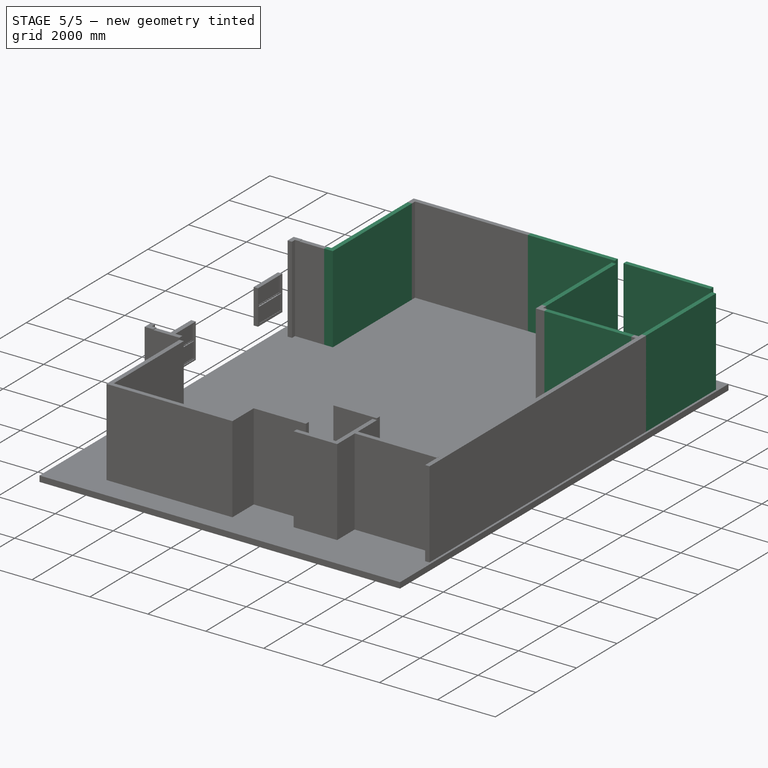
[diagram: stage 5 of 5 — iso view after this stage's code; geometry added in this stage tinted green]
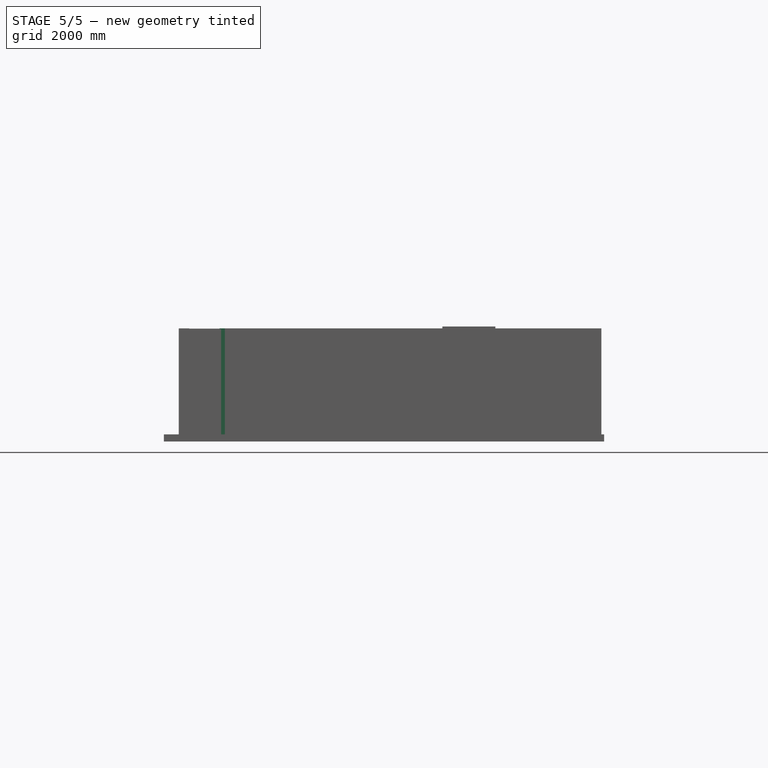
[diagram: stage 5 of 5 — front view after this stage's code; geometry added in this stage tinted green]
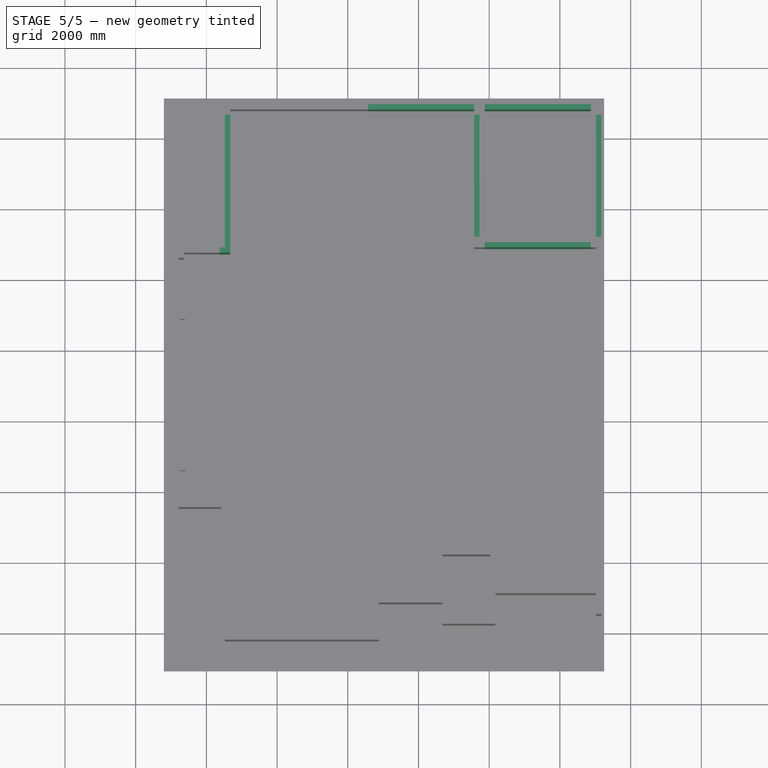
[diagram: stage 5 of 5 — top view after this stage's code; geometry added in this stage tinted green]
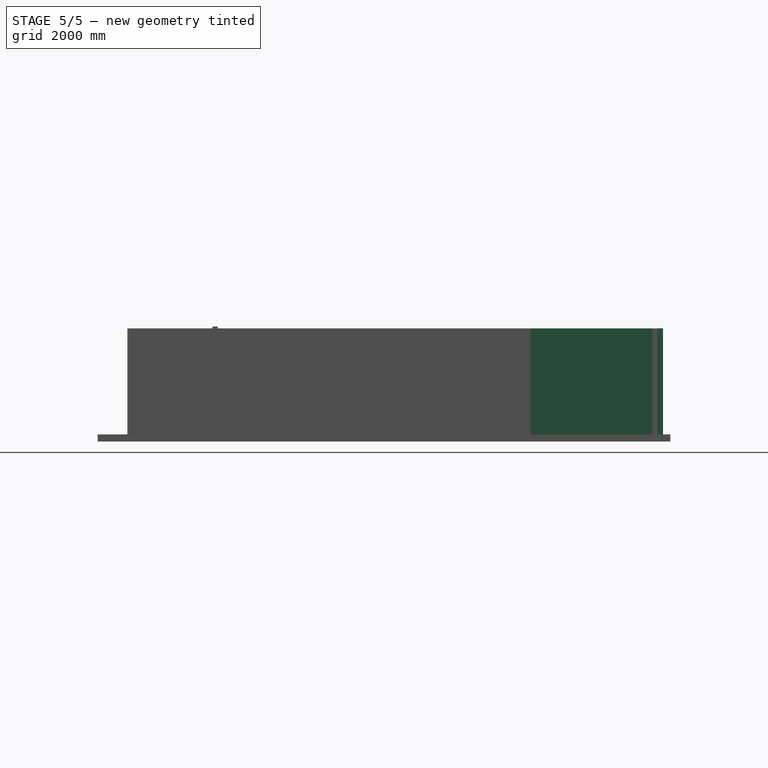
[diagram: stage 5 of 5 — right view after this stage's code; geometry added in this stage tinted green]
FEATURE [Part::Mirroring] mirror003  label="Mirror of Mirror of L-300x300"
  Base = (-6450,-2371.2,0)
  Normal = (0,-1,0)
  Placement = pos=(-10500,14399.1,0) rot=(0,0,1;0rad)
  Source = -> mirror002
FEATURE [Part::FeaturePython] Wall018  label="CMU-I19"  # Arch/BIM object (typed FeaturePython)
  Align = 1
  Base = -> WallTrace002
  BlockHeight = 0
  BlockLength = 0
  CountBroken = 0
  CountEntire = 0
  Face = 0
  Height = 3000
  HorizontalArea = 450000
  IfcRole = 156
  Joint = 0
  Length = 3000
  MakeBlocks = false
  MoveWithHost = false
  Normal = (0,0,1)
  OffsetFirst = 0
  OffsetSecond = 0
  PerimeterLength = 6300
  Placement = pos=(12675,8278.81,0) rot=(0,0,1;0rad)
  VerticalArea = 18900000
  Width = 150
FEATURE [Sketcher::SketchObject] WallTrace011
  Placement = pos=(75,28.8001,0) rot=(0,0,1;0rad)
  sketch-geometry (1):
    g0: LineSegment StartX=-5399.49 StartY=6657.99 StartZ=0 EndX=-5400 EndY=3000 EndZ=0
FEATURE [Sketcher::SketchObject] WallTrace012
  sketch-geometry (1):
    g0: LineSegment StartX=-5700 StartY=2850 StartZ=0 EndX=-6600 EndY=2850 EndZ=0
FEATURE [Sketcher::SketchObject] WallTrace013
  sketch-geometry (1):
    g0: LineSegment StartX=4950 StartY=3150 StartZ=0 EndX=4950 EndY=6600 EndZ=0
FEATURE [Part::FeaturePython] Wall025  label="CMU-E4"  # Arch/BIM object (typed FeaturePython)
  Align = 0
  Base = -> WallTrace013
  BlockHeight = 0
  BlockLength = 0
  CountBroken = 0
  CountEntire = 0
  Face = 0
  Height = 3000
  HorizontalArea = 517500
  IfcRole = 156
  Joint = 0
  Length = 3450
  MakeBlocks = false
  MoveWithHost = false
  Normal = (0,0,1)
  OffsetFirst = 0
  OffsetSecond = 0
  PerimeterLength = 7200
  Placement = pos=(75,28.8001,0) rot=(0,0,1;0rad)
  VerticalArea = 2.16e+07
  Width = 150
FEATURE [Sketcher::SketchObject] WallTrace014
  sketch-geometry (1):
    g0: LineSegment StartX=1650 StartY=3150 StartZ=0 EndX=1650 EndY=6600 EndZ=0
FEATURE [Part::FeaturePython] Wall026  label="CMU-I18"  # Arch/BIM object (typed FeaturePython)
  Align = 1
  Base = -> WallTrace014
  BlockHeight = 0
  BlockLength = 0
  CountBroken = 0
  CountEntire = 0
  Face = 0
  Height = 3000
  HorizontalArea = 517500
  IfcRole = 156
  Joint = 0
  Length = 3450
  MakeBlocks = false
  MoveWithHost = false
  Normal = (0,0,1)
  OffsetFirst = 0
  OffsetSecond = 0
  PerimeterLength = 7200
  Placement = pos=(75,28.8001,0) rot=(0,0,1;0rad)
  VerticalArea = 2.16e+07
  Width = 150
FEATURE [Sketcher::SketchObject] WallTrace015
  sketch-geometry (1):
    g0: LineSegment StartX=-5400 StartY=3000 StartZ=0 EndX=-5400 EndY=6600 EndZ=0
FEATURE [Part::FeaturePython] Wall027  label="CMU-W17"  # Arch/BIM object (typed FeaturePython)
  Align = 1
  Base = -> WallTrace015
  BlockHeight = 0
  BlockLength = 0
  CountBroken = 0
  CountEntire = 0
  Face = 0
  Height = 3000
  HorizontalArea = 540000
  IfcRole = 156
  Joint = 0
  Length = 3600
  MakeBlocks = false
  MoveWithHost = false
  Normal = (0,0,1)
  OffsetFirst = 0
  OffsetSecond = 0
  PerimeterLength = 7500
  Placement = pos=(75,28.8001,0) rot=(0,0,1;0rad)
  VerticalArea = 22500000
  Width = 150
FEATURE [Sketcher::SketchObject] WallTrace016
  sketch-geometry (1):
    g0: LineSegment StartX=4800 StartY=6900 StartZ=0 EndX=1800 EndY=6900 EndZ=0
FEATURE [Part::FeaturePython] Wall029  label="CMU-N3"  # Arch/BIM object (typed FeaturePython)
  Align = 1
  Base = -> WallTrace016
  BlockHeight = 0
  BlockLength = 0
  CountBroken = 0
  CountEntire = 0
  Face = 0
  Height = 3000
  HorizontalArea = 450000
  IfcRole = 156
  Joint = 0
  Length = 3000
  MakeBlocks = false
  MoveWithHost = false
  Normal = (0,0,1)
  OffsetFirst = 0
  OffsetSecond = 0
  PerimeterLength = 6300
  Placement = pos=(75,28.8001,0) rot=(0,0,1;0rad)
  VerticalArea = 1.89e+07
  Width = 150
FEATURE [Part::FeaturePython] Wall030  label="CMU-N2"  # Arch/BIM object (typed FeaturePython)
  Align = 1
  Base = -> WallTrace016
  BlockHeight = 0
  BlockLength = 0
  CountBroken = 0
  CountEntire = 0
  Face = 0
  Height = 3000
  HorizontalArea = 450000
  IfcRole = 156
  Joint = 0
  Length = 3000
  MakeBlocks = false
  MoveWithHost = false
  Normal = (0,0,1)
  OffsetFirst = 0
  OffsetSecond = 0
  PerimeterLength = 6300
  Placement = pos=(-3225,28.8002,0) rot=(0,0,1;0rad)
  VerticalArea = 1.89e+07
  Width = 150
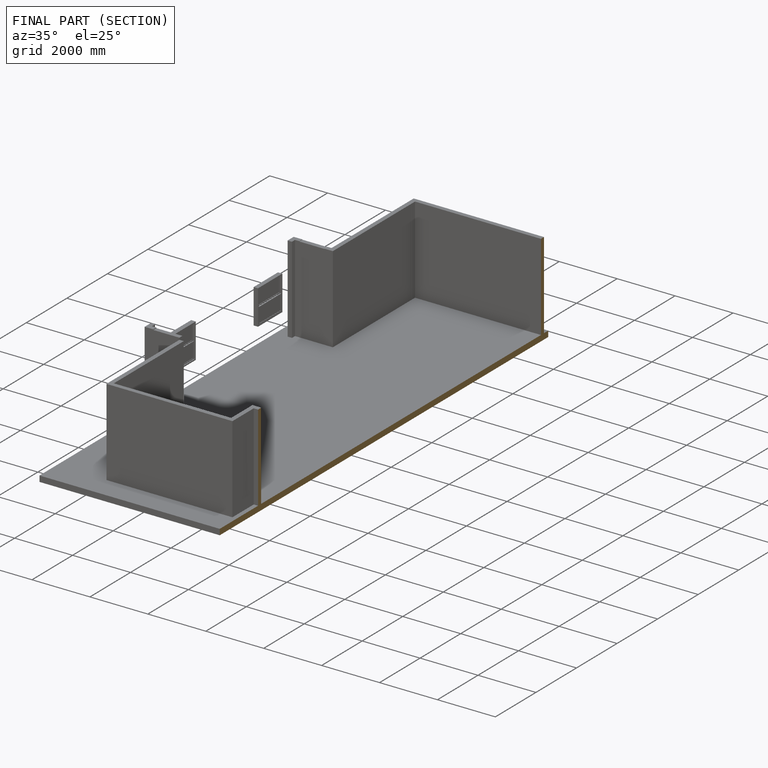
[diagram: finished part — half-section view (interior)]
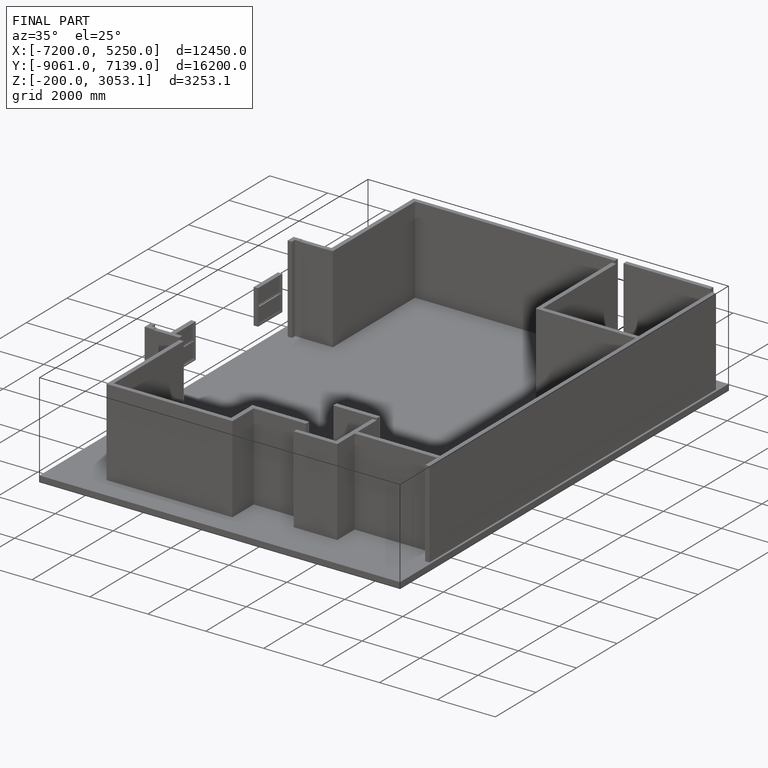
[diagram: finished part — iso view with bounding-box wireframe]
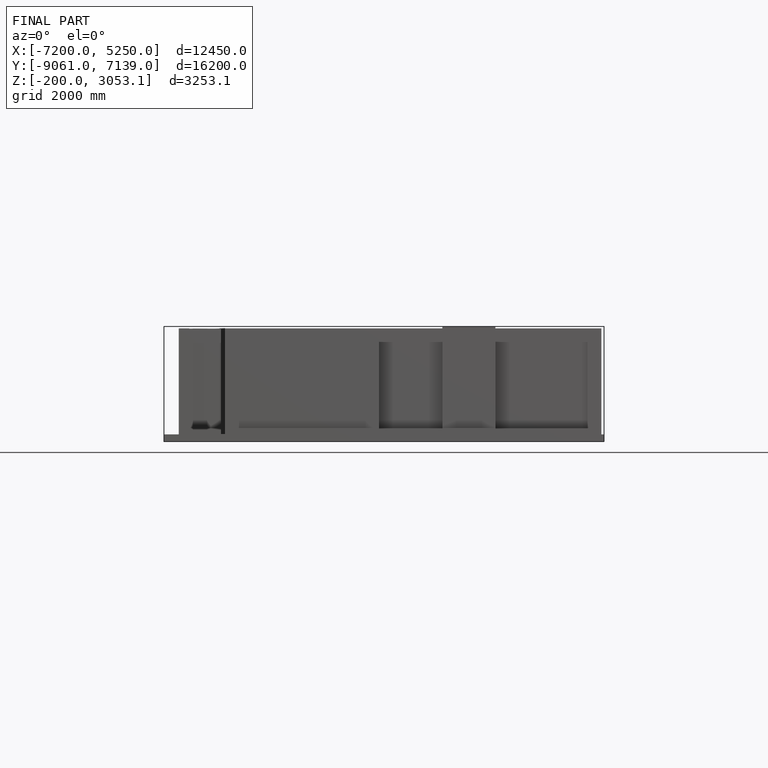
[diagram: finished part — front view with bounding-box wireframe]
